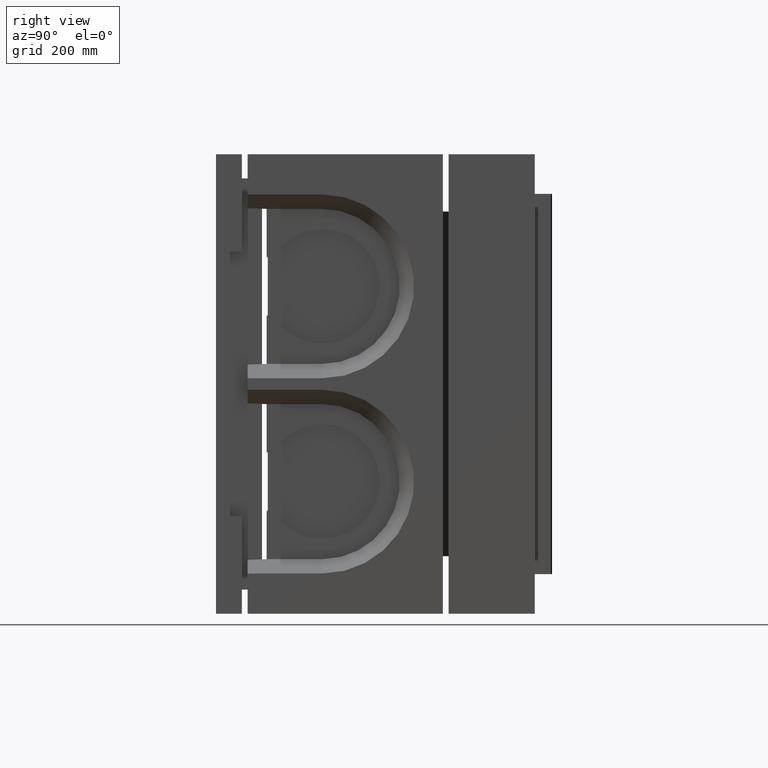
[diagram: clean part render]
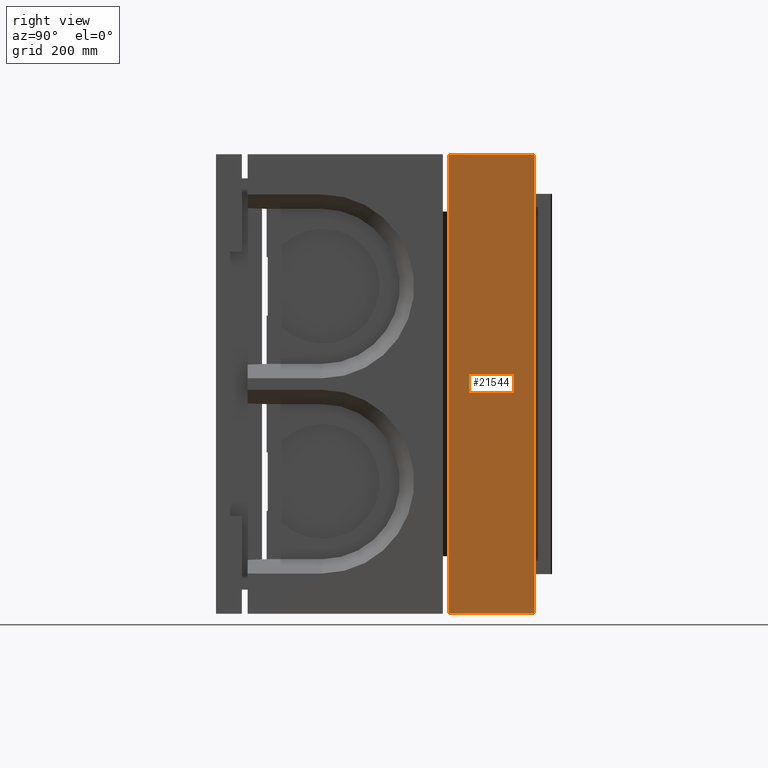
[diagram: same view with one face highlighted and labeled with its STEP entity id]
A machine part, right view. The second image highlights one B-rep face of the part: STEP entity #21544.
In plain terms, the highlighted planar face has unit normal (1, 0, -0).
Its self-contained STEP definition (entity closure, byte-faithful):
#690 = CARTESIAN_POINT ( 'NONE',  ( 400.0000000000002274, 404.9999999999999432, 400.0000000000000568 ) ) ;
#1144 = VECTOR ( 'NONE', #4599, 1000.000000000000000 ) ;
#1364 = LINE ( 'NONE', #15492, #21139 ) ;
#1528 = PLANE ( 'NONE',  #9437 ) ;
#2129 = EDGE_CURVE ( 'NONE', #2976, #6193, #22423, .T. ) ;
#2421 = LINE ( 'NONE', #11844, #5491 ) ;
#2976 = VERTEX_POINT ( 'NONE', #12831 ) ;
#3455 = CARTESIAN_POINT ( 'NONE',  ( 400.0000000000002274, 404.9999999999999432, -399.9999999999999432 ) ) ;
#3533 = DIRECTION ( 'NONE',  ( 1.000000000000000000, 3.330669073875477017E-16, -1.694818351060767551E-31 ) ) ;
#4599 = DIRECTION ( 'NONE',  ( -3.330669073875477017E-16, 1.000000000000000000, -1.110223024625157280E-16 ) ) ;
#5491 = VECTOR ( 'NONE', #17968, 1000.000000000000000 ) ;
#6193 = VERTEX_POINT ( 'NONE', #6601 ) ;
#6601 = CARTESIAN_POINT ( 'NONE',  ( 400.0000000000001705, 554.9999999999998863, 400.0000000000000568 ) ) ;
#9437 = AXIS2_PLACEMENT_3D ( 'NONE', #15254, #3533, #22973 ) ;
#11681 = ORIENTED_EDGE ( 'NONE', *, *, #18323, .F. ) ;
#11844 = CARTESIAN_POINT ( 'NONE',  ( 400.0000000000002274, 404.9999999999999432, -399.9999999999999432 ) ) ;
#12337 = VECTOR ( 'NONE', #15494, 1000.000000000000000 ) ;
#12831 = CARTESIAN_POINT ( 'NONE',  ( 400.0000000000002274, 404.9999999999999432, 400.0000000000000568 ) ) ;
#12914 = LINE ( 'NONE', #25216, #12337 ) ;
#13143 = FACE_OUTER_BOUND ( 'NONE', #15497, .T. ) ;
#14542 = ORIENTED_EDGE ( 'NONE', *, *, #2129, .F. ) ;
#15047 = ORIENTED_EDGE ( 'NONE', *, *, #22731, .T. ) ;
#15254 = CARTESIAN_POINT ( 'NONE',  ( 400.0000000000002274, 404.9999999999999432, 400.0000000000000568 ) ) ;
#15492 = CARTESIAN_POINT ( 'NONE',  ( 400.0000000000001705, 554.9999999999998863, 400.0000000000000568 ) ) ;
#15494 = DIRECTION ( 'NONE',  ( 0.0000000000000000000, 0.0000000000000000000, -1.000000000000000000 ) ) ;
#15497 = EDGE_LOOP ( 'NONE', ( #15047, #11681, #14542, #16703 ) ) ;
#15940 = EDGE_CURVE ( 'NONE', #2976, #21527, #12914, .T. ) ;
#16703 = ORIENTED_EDGE ( 'NONE', *, *, #15940, .T. ) ;
#17968 = DIRECTION ( 'NONE',  ( -3.330669073875477017E-16, 1.000000000000000000, -1.110223024625157280E-16 ) ) ;
#18323 = EDGE_CURVE ( 'NONE', #6193, #22325, #1364, .T. ) ;
#21139 = VECTOR ( 'NONE', #25119, 1000.000000000000000 ) ;
#21527 = VERTEX_POINT ( 'NONE', #3455 ) ;
#21544 = ADVANCED_FACE ( 'NONE', ( #13143 ), #1528, .T. ) ;
#22325 = VERTEX_POINT ( 'NONE', #24327 ) ;
#22423 = LINE ( 'NONE', #690, #1144 ) ;
#22731 = EDGE_CURVE ( 'NONE', #21527, #22325, #2421, .T. ) ;
#22973 = DIRECTION ( 'NONE',  ( 3.330669073875477017E-16, -1.000000000000000000, 1.110223024625157280E-16 ) ) ;
#24327 = CARTESIAN_POINT ( 'NONE',  ( 400.0000000000001705, 554.9999999999998863, -399.9999999999999432 ) ) ;
#25119 = DIRECTION ( 'NONE',  ( 0.0000000000000000000, 0.0000000000000000000, -1.000000000000000000 ) ) ;
#25216 = CARTESIAN_POINT ( 'NONE',  ( 400.0000000000002274, 404.9999999999999432, 400.0000000000000568 ) ) ;